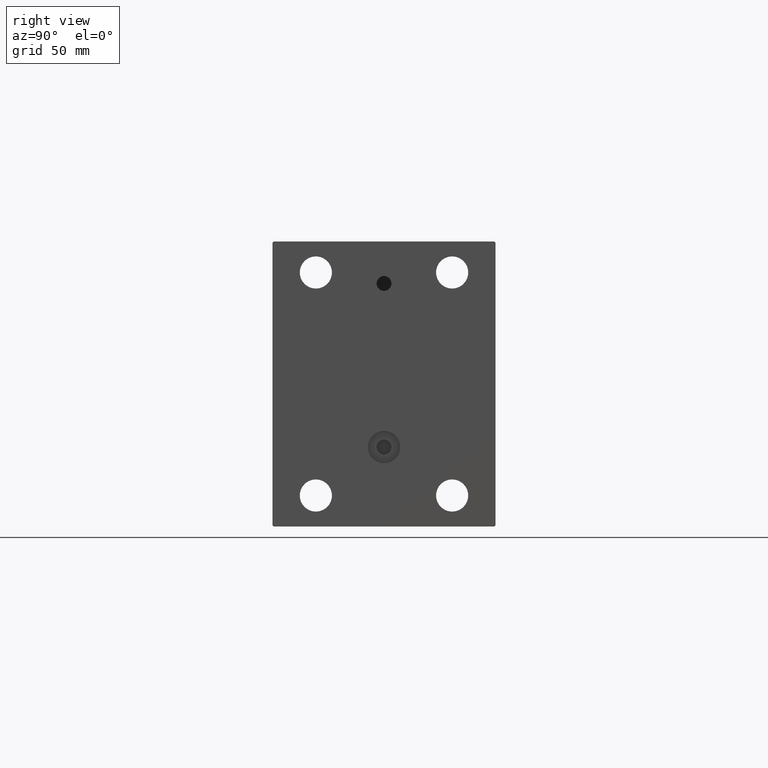
[diagram: clean part render]
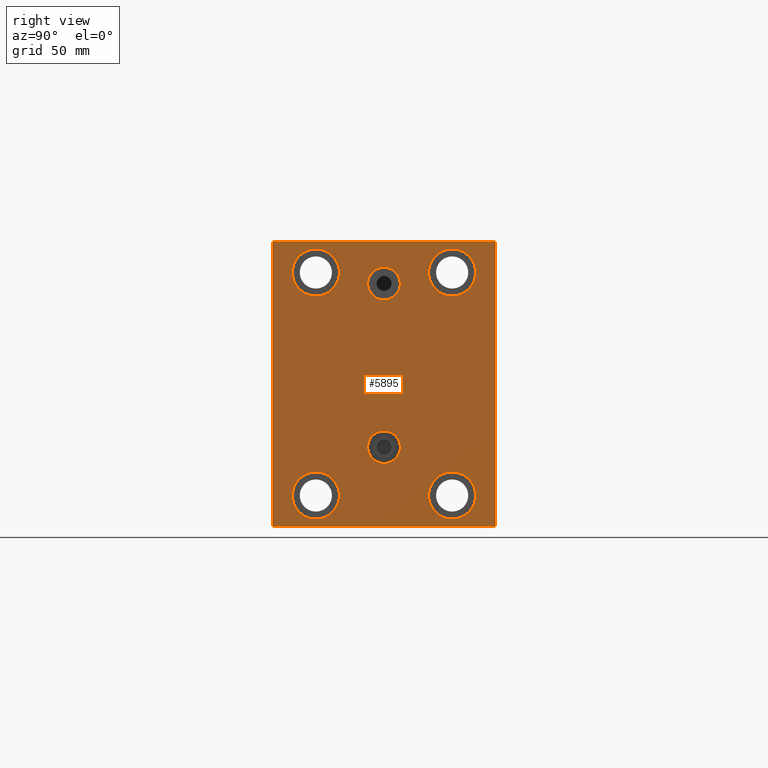
[diagram: same view with one face highlighted and labeled with its STEP entity id]
A machine part, right view. The second image highlights one B-rep face of the part: STEP entity #5895.
In plain terms, the highlighted planar face has unit normal (1, 0, 0).
Its self-contained STEP definition (entity closure, byte-faithful):
#179 = ORIENTED_EDGE ( 'NONE', *, *, #37089, .T. ) ;
#600 = VERTEX_POINT ( 'NONE', #18437 ) ;
#634 = CARTESIAN_POINT ( 'NONE',  ( 198.0000000000000000, 27.49999999999998934, -54.49999999999998579 ) ) ;
#721 = VERTEX_POINT ( 'NONE', #26901 ) ;
#872 = DIRECTION ( 'NONE',  ( 0.000000000000000000, -0.7071067811865671127, -0.7071067811865279218 ) ) ;
#1206 = LINE ( 'NONE', #43968, #8364 ) ;
#1322 = CARTESIAN_POINT ( 'NONE',  ( 198.0000000000000000, -50.99999999999877787, 51.00000000000160583 ) ) ;
#1636 = CARTESIAN_POINT ( 'NONE',  ( 198.0000000000000000, 27.49999999999998934, -44.99999999999998579 ) ) ;
#1704 = ORIENTED_EDGE ( 'NONE', *, *, #23148, .T. ) ;
#1807 = VERTEX_POINT ( 'NONE', #21611 ) ;
#1962 = EDGE_CURVE ( 'NONE', #24292, #44033, #31777, .T. ) ;
#2014 = VERTEX_POINT ( 'NONE', #28210 ) ;
#2865 = DIRECTION ( 'NONE',  ( 0.000000000000000000, -1.206764157201257045E-16, 1.000000000000000000 ) ) ;
#2953 = ORIENTED_EDGE ( 'NONE', *, *, #28499, .T. ) ;
#3883 = VECTOR ( 'NONE', #872, 1000.000000000000000 ) ;
#4286 = DIRECTION ( 'NONE',  ( 0.000000000000000000, 0.000000000000000000, -1.000000000000000000 ) ) ;
#4473 = CARTESIAN_POINT ( 'NONE',  ( 198.0000000000000000, -45.00000000000000000, 57.00000000000004974 ) ) ;
#4490 = EDGE_LOOP ( 'NONE', ( #18017, #44333 ) ) ;
#5037 = EDGE_CURVE ( 'NONE', #24694, #45191, #1206, .T. ) ;
#5097 = CIRCLE ( 'NONE', #30820, 9.500000000000001776 ) ;
#5099 = DIRECTION ( 'NONE',  ( -1.000000000000000000, -0.000000000000000000, -0.000000000000000000 ) ) ;
#5126 = CARTESIAN_POINT ( 'NONE',  ( 198.0000000000000000, -27.50000000000000000, -44.99999999999998579 ) ) ;
#5217 = VERTEX_POINT ( 'NONE', #6464 ) ;
#5299 = DIRECTION ( 'NONE',  ( -1.000000000000000000, -0.000000000000000000, -0.000000000000000000 ) ) ;
#5528 = VECTOR ( 'NONE', #21701, 1000.000000000000000 ) ;
#5895 = ADVANCED_FACE ( 'NONE', ( #32390, #29161, #29600, #18592, #33063, #12125, #8005 ), #15350, .T. ) ;
#5956 = ORIENTED_EDGE ( 'NONE', *, *, #6469, .T. ) ;
#6464 = CARTESIAN_POINT ( 'NONE',  ( 198.0000000000000000, 45.00000000000000000, 57.00000000000003553 ) ) ;
#6469 = EDGE_CURVE ( 'NONE', #6856, #13758, #9826, .T. ) ;
#6517 = CIRCLE ( 'NONE', #40309, 9.500000000000001776 ) ;
#6856 = VERTEX_POINT ( 'NONE', #36026 ) ;
#6912 = AXIS2_PLACEMENT_3D ( 'NONE', #43638, #8450, #14892 ) ;
#7283 = CARTESIAN_POINT ( 'NONE',  ( 198.0000000000000000, -5.306417150674643778E-15, 40.50000000000000711 ) ) ;
#7868 = EDGE_CURVE ( 'NONE', #23751, #600, #44415, .T. ) ;
#8005 = FACE_OUTER_BOUND ( 'NONE', #29145, .T. ) ;
#8106 = CARTESIAN_POINT ( 'NONE',  ( 198.0000000000000000, 45.00000000000000000, 57.50000000000000711 ) ) ;
#8196 = DIRECTION ( 'NONE',  ( 1.000000000000000000, 0.000000000000000000, 0.000000000000000000 ) ) ;
#8364 = VECTOR ( 'NONE', #8771, 1000.000000000000000 ) ;
#8450 = DIRECTION ( 'NONE',  ( 1.000000000000000000, 0.000000000000000000, 0.000000000000000000 ) ) ;
#8771 = DIRECTION ( 'NONE',  ( 0.000000000000000000, 0.000000000000000000, -1.000000000000000000 ) ) ;
#8776 = ORIENTED_EDGE ( 'NONE', *, *, #25166, .F. ) ;
#8796 = DIRECTION ( 'NONE',  ( 0.000000000000000000, 0.000000000000000000, 1.000000000000000000 ) ) ;
#8973 = DIRECTION ( 'NONE',  ( 0.000000000000000000, 0.000000000000000000, 1.000000000000000000 ) ) ;
#9422 = AXIS2_PLACEMENT_3D ( 'NONE', #32608, #25016, #11204 ) ;
#9813 = DIRECTION ( 'NONE',  ( -0.000000000000000000, 0.7071067811865671127, -0.7071067811865279218 ) ) ;
#9825 = AXIS2_PLACEMENT_3D ( 'NONE', #34845, #20372, #24264 ) ;
#9826 = CIRCLE ( 'NONE', #21614, 9.500000000000001776 ) ;
#10424 = VERTEX_POINT ( 'NONE', #30516 ) ;
#10905 = DIRECTION ( 'NONE',  ( -1.000000000000000000, -0.000000000000000000, -0.000000000000000000 ) ) ;
#11204 = DIRECTION ( 'NONE',  ( 0.000000000000000000, 0.000000000000000000, -1.000000000000000000 ) ) ;
#11217 = EDGE_CURVE ( 'NONE', #721, #18660, #28352, .T. ) ;
#11293 = EDGE_LOOP ( 'NONE', ( #41740, #39188 ) ) ;
#11474 = ORIENTED_EDGE ( 'NONE', *, *, #19691, .T. ) ;
#12125 = FACE_BOUND ( 'NONE', #4490, .T. ) ;
#12238 = CARTESIAN_POINT ( 'NONE',  ( 198.0000000000000000, 27.50000000000001066, 45.00000000000000711 ) ) ;
#12517 = CARTESIAN_POINT ( 'NONE',  ( 198.0000000000000000, -27.49999999999998934, 45.00000000000000711 ) ) ;
#12735 = EDGE_LOOP ( 'NONE', ( #5956, #36794 ) ) ;
#13022 = CIRCLE ( 'NONE', #24040, 9.500000000000001776 ) ;
#13736 = EDGE_CURVE ( 'NONE', #22161, #23469, #43685, .T. ) ;
#13758 = VERTEX_POINT ( 'NONE', #35269 ) ;
#14246 = CARTESIAN_POINT ( 'NONE',  ( 198.0000000000000000, -45.00000000000000000, -57.00000000000006395 ) ) ;
#14892 = DIRECTION ( 'NONE',  ( 0.000000000000000000, 0.000000000000000000, -1.000000000000000000 ) ) ;
#15011 = DIRECTION ( 'NONE',  ( 0.000000000000000000, 0.000000000000000000, 1.000000000000000000 ) ) ;
#15350 = PLANE ( 'NONE',  #6912 ) ;
#15465 = DIRECTION ( 'NONE',  ( -1.000000000000000000, -0.000000000000000000, -0.000000000000000000 ) ) ;
#17169 = VECTOR ( 'NONE', #44948, 1000.000000000000000 ) ;
#18017 = ORIENTED_EDGE ( 'NONE', *, *, #18690, .T. ) ;
#18138 = ORIENTED_EDGE ( 'NONE', *, *, #21960, .T. ) ;
#18406 = CARTESIAN_POINT ( 'NONE',  ( 198.0000000000000000, -27.50000000000000000, -44.99999999999998579 ) ) ;
#18437 = CARTESIAN_POINT ( 'NONE',  ( 198.0000000000000000, 27.50000000000001066, 35.50000000000000711 ) ) ;
#18486 = ORIENTED_EDGE ( 'NONE', *, *, #11217, .T. ) ;
#18592 = FACE_BOUND ( 'NONE', #12735, .T. ) ;
#18660 = VERTEX_POINT ( 'NONE', #25287 ) ;
#18690 = EDGE_CURVE ( 'NONE', #1807, #2014, #13022, .T. ) ;
#18938 = ORIENTED_EDGE ( 'NONE', *, *, #1962, .F. ) ;
#19433 = DIRECTION ( 'NONE',  ( -1.000000000000000000, -0.000000000000000000, -0.000000000000000000 ) ) ;
#19691 = EDGE_CURVE ( 'NONE', #5217, #721, #32379, .T. ) ;
#20123 = LINE ( 'NONE', #28546, #43264 ) ;
#20158 = VECTOR ( 'NONE', #42389, 1000.000000000000000 ) ;
#20372 = DIRECTION ( 'NONE',  ( 1.000000000000000000, 0.000000000000000000, -0.000000000000000000 ) ) ;
#20575 = CARTESIAN_POINT ( 'NONE',  ( 198.0000000000000000, -45.00000000000000000, -57.50000000000000711 ) ) ;
#20952 = CARTESIAN_POINT ( 'NONE',  ( 198.0000000000000000, 50.99999999999877787, 51.00000000000160583 ) ) ;
#21169 = DIRECTION ( 'NONE',  ( 0.000000000000000000, 0.000000000000000000, 1.000000000000000000 ) ) ;
#21423 = CARTESIAN_POINT ( 'NONE',  ( 198.0000000000000000, 44.50000000000004263, -57.50000000000000711 ) ) ;
#21611 = CARTESIAN_POINT ( 'NONE',  ( 198.0000000000000000, -27.50000000000000000, -54.49999999999998579 ) ) ;
#21612 = EDGE_CURVE ( 'NONE', #13758, #6856, #6517, .T. ) ;
#21614 = AXIS2_PLACEMENT_3D ( 'NONE', #38848, #34943, #42977 ) ;
#21701 = DIRECTION ( 'NONE',  ( -0.000000000000000000, 0.7071067811865279218, 0.7071067811865671127 ) ) ;
#21960 = EDGE_CURVE ( 'NONE', #600, #23751, #43982, .T. ) ;
#21991 = EDGE_LOOP ( 'NONE', ( #39172, #2953 ) ) ;
#22161 = VERTEX_POINT ( 'NONE', #21423 ) ;
#23148 = EDGE_CURVE ( 'NONE', #23469, #5217, #20123, .T. ) ;
#23259 = CARTESIAN_POINT ( 'NONE',  ( 198.0000000000000000, 27.49999999999998934, -44.99999999999998579 ) ) ;
#23469 = VERTEX_POINT ( 'NONE', #28263 ) ;
#23617 = EDGE_CURVE ( 'NONE', #45191, #10424, #30078, .T. ) ;
#23751 = VERTEX_POINT ( 'NONE', #32572 ) ;
#23907 = EDGE_CURVE ( 'NONE', #24357, #27186, #5097, .T. ) ;
#24040 = AXIS2_PLACEMENT_3D ( 'NONE', #18406, #42544, #21169 ) ;
#24264 = DIRECTION ( 'NONE',  ( 0.000000000000000000, 0.000000000000000000, 1.000000000000000000 ) ) ;
#24292 = VERTEX_POINT ( 'NONE', #25466 ) ;
#24330 = ORIENTED_EDGE ( 'NONE', *, *, #13736, .T. ) ;
#24357 = VERTEX_POINT ( 'NONE', #634 ) ;
#24586 = AXIS2_PLACEMENT_3D ( 'NONE', #24709, #10905, #38745 ) ;
#24694 = VERTEX_POINT ( 'NONE', #4473 ) ;
#24709 = CARTESIAN_POINT ( 'NONE',  ( 198.0000000000000000, 27.50000000000001066, 45.00000000000000711 ) ) ;
#24871 = CIRCLE ( 'NONE', #9422, 6.580000000000002736 ) ;
#25016 = DIRECTION ( 'NONE',  ( 1.000000000000000000, 0.000000000000000000, 0.000000000000000000 ) ) ;
#25166 = EDGE_CURVE ( 'NONE', #44033, #24292, #24871, .T. ) ;
#25243 = DIRECTION ( 'NONE',  ( -0.000000000000000000, -0.7071067811865671127, 0.7071067811865279218 ) ) ;
#25287 = CARTESIAN_POINT ( 'NONE',  ( 198.0000000000000000, -44.50000000000000000, 57.49999999999999289 ) ) ;
#25466 = CARTESIAN_POINT ( 'NONE',  ( 198.0000000000000000, -5.306417150674643778E-15, 33.92000000000000881 ) ) ;
#25930 = LINE ( 'NONE', #1322, #3883 ) ;
#26708 = AXIS2_PLACEMENT_3D ( 'NONE', #5126, #32754, #44215 ) ;
#26901 = CARTESIAN_POINT ( 'NONE',  ( 198.0000000000000000, 44.50000000000002842, 57.50000000000000711 ) ) ;
#27186 = VERTEX_POINT ( 'NONE', #40787 ) ;
#27475 = CIRCLE ( 'NONE', #9825, 6.580000000000002736 ) ;
#27822 = VECTOR ( 'NONE', #9813, 1000.000000000000000 ) ;
#28210 = CARTESIAN_POINT ( 'NONE',  ( 198.0000000000000000, -27.50000000000000000, -35.49999999999998579 ) ) ;
#28263 = CARTESIAN_POINT ( 'NONE',  ( 198.0000000000000000, 45.00000000000001421, -57.00000000000003553 ) ) ;
#28352 = LINE ( 'NONE', #8106, #20158 ) ;
#28499 = EDGE_CURVE ( 'NONE', #27186, #24357, #34460, .T. ) ;
#28546 = CARTESIAN_POINT ( 'NONE',  ( 198.0000000000000000, 45.00000000000001421, -57.50000000000000711 ) ) ;
#29145 = EDGE_LOOP ( 'NONE', ( #18486, #179, #43524, #41950, #39643, #24330, #1704, #11474 ) ) ;
#29161 = FACE_BOUND ( 'NONE', #11293, .T. ) ;
#29263 = DIRECTION ( 'NONE',  ( 0.000000000000000000, 0.000000000000000000, 1.000000000000000000 ) ) ;
#29600 = FACE_BOUND ( 'NONE', #21991, .T. ) ;
#29982 = CARTESIAN_POINT ( 'NONE',  ( 198.0000000000000000, 3.928666931664708475E-15, -18.91999999999999105 ) ) ;
#30078 = LINE ( 'NONE', #40654, #27822 ) ;
#30516 = CARTESIAN_POINT ( 'NONE',  ( 198.0000000000000000, -44.50000000000002842, -57.50000000000000711 ) ) ;
#30820 = AXIS2_PLACEMENT_3D ( 'NONE', #1636, #5099, #29263 ) ;
#31777 = CIRCLE ( 'NONE', #42807, 6.580000000000002736 ) ;
#32043 = CARTESIAN_POINT ( 'NONE',  ( 198.0000000000000000, 51.00000000000127187, -50.99999999999844391 ) ) ;
#32135 = CARTESIAN_POINT ( 'NONE',  ( 198.0000000000000000, 3.122849337825749828E-15, -32.07999999999999829 ) ) ;
#32379 = LINE ( 'NONE', #20952, #43885 ) ;
#32390 = FACE_BOUND ( 'NONE', #39692, .T. ) ;
#32572 = CARTESIAN_POINT ( 'NONE',  ( 198.0000000000000000, 27.50000000000001066, 54.50000000000000711 ) ) ;
#32608 = CARTESIAN_POINT ( 'NONE',  ( 198.0000000000000000, -5.306417150674643778E-15, 40.50000000000000711 ) ) ;
#32754 = DIRECTION ( 'NONE',  ( -1.000000000000000000, -0.000000000000000000, -0.000000000000000000 ) ) ;
#33063 = FACE_BOUND ( 'NONE', #35327, .T. ) ;
#33190 = CARTESIAN_POINT ( 'NONE',  ( 198.0000000000000000, 3.122849337825749828E-15, -25.49999999999999645 ) ) ;
#33666 = AXIS2_PLACEMENT_3D ( 'NONE', #12238, #15465, #15011 ) ;
#34460 = CIRCLE ( 'NONE', #40338, 9.500000000000001776 ) ;
#34796 = AXIS2_PLACEMENT_3D ( 'NONE', #33190, #39650, #8796 ) ;
#34845 = CARTESIAN_POINT ( 'NONE',  ( 198.0000000000000000, 3.122849337825749828E-15, -25.49999999999999645 ) ) ;
#34943 = DIRECTION ( 'NONE',  ( -1.000000000000000000, -0.000000000000000000, -0.000000000000000000 ) ) ;
#35269 = CARTESIAN_POINT ( 'NONE',  ( 198.0000000000000000, -27.49999999999998934, 54.50000000000000711 ) ) ;
#35327 = EDGE_LOOP ( 'NONE', ( #18138, #40316 ) ) ;
#36026 = CARTESIAN_POINT ( 'NONE',  ( 198.0000000000000000, -27.49999999999998934, 35.50000000000000711 ) ) ;
#36794 = ORIENTED_EDGE ( 'NONE', *, *, #21612, .T. ) ;
#36991 = CIRCLE ( 'NONE', #26708, 9.500000000000001776 ) ;
#37089 = EDGE_CURVE ( 'NONE', #18660, #24694, #25930, .T. ) ;
#37538 = EDGE_CURVE ( 'NONE', #10424, #22161, #38272, .T. ) ;
#38249 = EDGE_CURVE ( 'NONE', #2014, #1807, #36991, .T. ) ;
#38272 = LINE ( 'NONE', #20575, #17169 ) ;
#38302 = EDGE_CURVE ( 'NONE', #40893, #39852, #39923, .T. ) ;
#38394 = CARTESIAN_POINT ( 'NONE',  ( 198.0000000000000000, -4.500599556835684736E-15, 47.08000000000001251 ) ) ;
#38745 = DIRECTION ( 'NONE',  ( 0.000000000000000000, 0.000000000000000000, 1.000000000000000000 ) ) ;
#38848 = CARTESIAN_POINT ( 'NONE',  ( 198.0000000000000000, -27.49999999999998934, 45.00000000000000711 ) ) ;
#38941 = EDGE_CURVE ( 'NONE', #39852, #40893, #27475, .T. ) ;
#39172 = ORIENTED_EDGE ( 'NONE', *, *, #23907, .T. ) ;
#39188 = ORIENTED_EDGE ( 'NONE', *, *, #38302, .F. ) ;
#39287 = DIRECTION ( 'NONE',  ( 0.000000000000000000, 0.000000000000000000, 1.000000000000000000 ) ) ;
#39643 = ORIENTED_EDGE ( 'NONE', *, *, #37538, .T. ) ;
#39650 = DIRECTION ( 'NONE',  ( 1.000000000000000000, 0.000000000000000000, -0.000000000000000000 ) ) ;
#39692 = EDGE_LOOP ( 'NONE', ( #18938, #8776 ) ) ;
#39852 = VERTEX_POINT ( 'NONE', #32135 ) ;
#39923 = CIRCLE ( 'NONE', #34796, 6.580000000000002736 ) ;
#40309 = AXIS2_PLACEMENT_3D ( 'NONE', #12517, #19433, #39287 ) ;
#40316 = ORIENTED_EDGE ( 'NONE', *, *, #7868, .T. ) ;
#40338 = AXIS2_PLACEMENT_3D ( 'NONE', #23259, #5299, #8973 ) ;
#40654 = CARTESIAN_POINT ( 'NONE',  ( 198.0000000000000000, -50.99999999999877787, -51.00000000000160583 ) ) ;
#40787 = CARTESIAN_POINT ( 'NONE',  ( 198.0000000000000000, 27.49999999999998934, -35.49999999999998579 ) ) ;
#40893 = VERTEX_POINT ( 'NONE', #29982 ) ;
#41740 = ORIENTED_EDGE ( 'NONE', *, *, #38941, .F. ) ;
#41950 = ORIENTED_EDGE ( 'NONE', *, *, #23617, .T. ) ;
#42389 = DIRECTION ( 'NONE',  ( 0.000000000000000000, -1.000000000000000000, -1.541976423090495387E-16 ) ) ;
#42544 = DIRECTION ( 'NONE',  ( -1.000000000000000000, -0.000000000000000000, -0.000000000000000000 ) ) ;
#42807 = AXIS2_PLACEMENT_3D ( 'NONE', #7283, #8196, #4286 ) ;
#42977 = DIRECTION ( 'NONE',  ( 0.000000000000000000, 0.000000000000000000, 1.000000000000000000 ) ) ;
#43264 = VECTOR ( 'NONE', #2865, 1000.000000000000000 ) ;
#43524 = ORIENTED_EDGE ( 'NONE', *, *, #5037, .T. ) ;
#43638 = CARTESIAN_POINT ( 'NONE',  ( 198.0000000000000000, 0.000000000000000000, 0.000000000000000000 ) ) ;
#43685 = LINE ( 'NONE', #32043, #5528 ) ;
#43885 = VECTOR ( 'NONE', #25243, 1000.000000000000000 ) ;
#43968 = CARTESIAN_POINT ( 'NONE',  ( 198.0000000000000000, -45.00000000000000000, 57.49999999999999289 ) ) ;
#43982 = CIRCLE ( 'NONE', #33666, 9.500000000000001776 ) ;
#44033 = VERTEX_POINT ( 'NONE', #38394 ) ;
#44215 = DIRECTION ( 'NONE',  ( 0.000000000000000000, 0.000000000000000000, 1.000000000000000000 ) ) ;
#44333 = ORIENTED_EDGE ( 'NONE', *, *, #38249, .T. ) ;
#44415 = CIRCLE ( 'NONE', #24586, 9.500000000000001776 ) ;
#44948 = DIRECTION ( 'NONE',  ( 0.000000000000000000, 1.000000000000000000, 0.000000000000000000 ) ) ;
#45191 = VERTEX_POINT ( 'NONE', #14246 ) ;